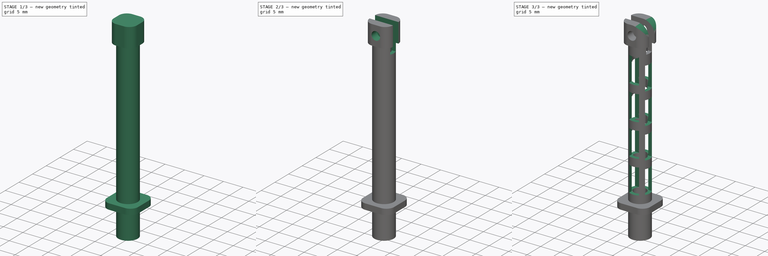
[diagram: build sequence overview — one tinted view per stage of 3, left to right]
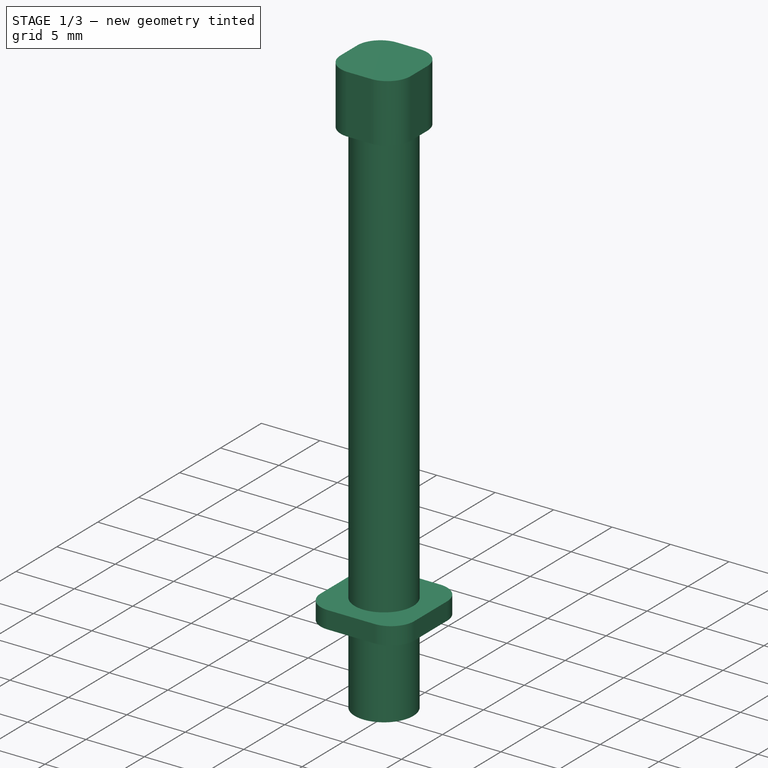
[diagram: stage 1 of 3 — iso view after this stage's code; geometry added in this stage tinted green]
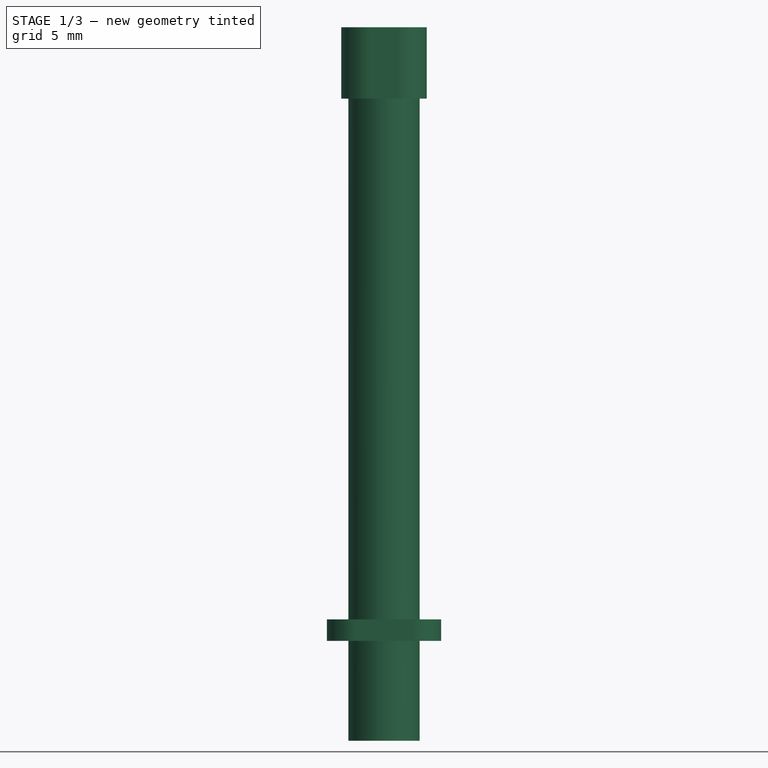
[diagram: stage 1 of 3 — front view after this stage's code; geometry added in this stage tinted green]
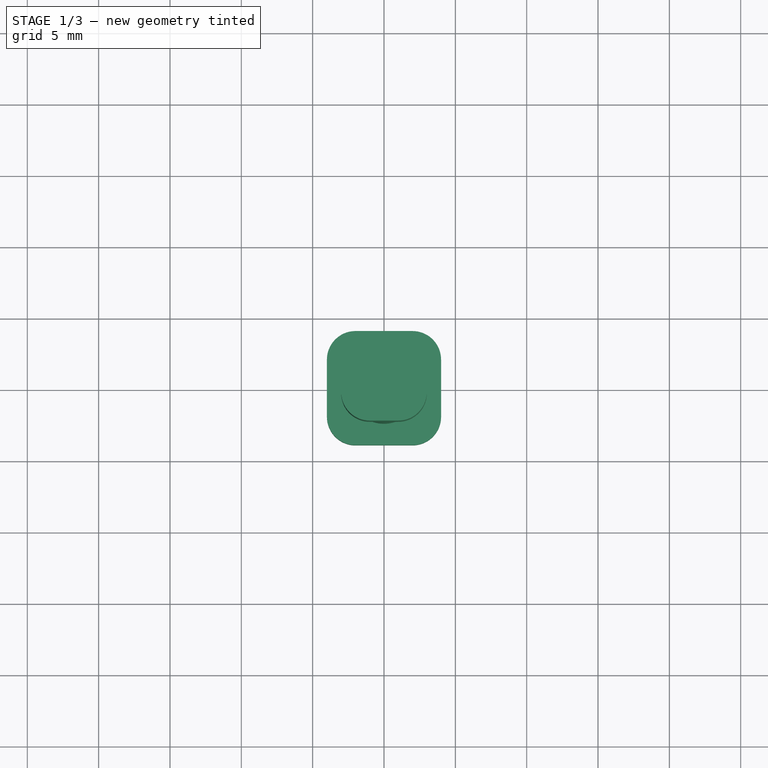
[diagram: stage 1 of 3 — top view after this stage's code; geometry added in this stage tinted green]
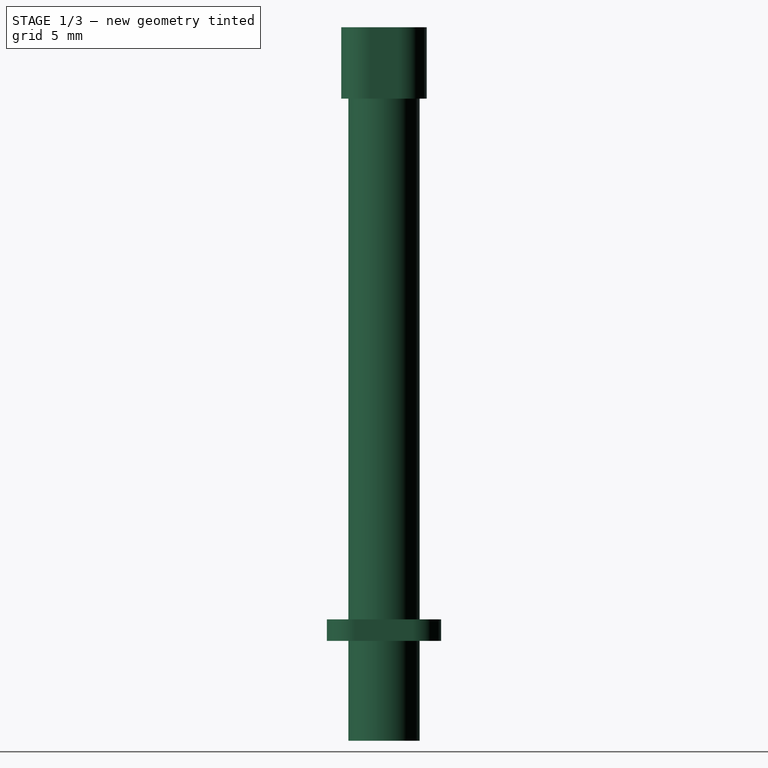
[diagram: stage 1 of 3 — right view after this stage's code; geometry added in this stage tinted green]
FCSTD DOCUMENT  (FreeCAD 0.21R29446 (Git))
Label: Lamp_post_40_v2
License: All rights reserved
LicenseURL: http://en.wikipedia.org/wiki/All_rights_reserved
objects: Sketcher::SketchObject×8, PartDesign::Pocket×5, PartDesign::Pad×3, PartDesign::Body×1
note: 25 computed .brp shape members not serialized (recipe doc carries the construction recipe); baked Part::Feature solids carry a one-line shape summary decoded from their .brp

FEATURE [Sketcher::SketchObject] Sketch
  FullyConstrained = true
  MapMode = 5
  Support = -> [XY_Plane]
  sketch-geometry (2):
    g0: Circle CenterX=0 CenterY=0 CenterZ=0 NormalX=0 NormalY=0 NormalZ=1 AngleXU=0 Radius=2.5
    g1: Circle CenterX=0 CenterY=0 CenterZ=0 NormalX=0 NormalY=0 NormalZ=1 AngleXU=0 Radius=1.6
  constraints (4):
    c: Coincident(g0,g-1)
    c: Diameter(g0) = 5
    c: Coincident(g1,g0)
    c: Diameter(g1) = 3.2
FEATURE [PartDesign::Pad] Pad
  Direction = (0,0,1)
  Length = 45
  Length2 = 10
  Profile = -> Sketch
  ReferenceAxis = -> Sketch [N_Axis]
  Type = 0
FEATURE [Sketcher::SketchObject] Sketch001
  AttachmentOffset = pos=(0,0,-7) rot=(0,0,1;0rad)
  FullyConstrained = true
  MapMode = 5
  Placement = pos=(0,0,7) rot=(1,0,0;3.14159rad)
  Support = -> [Pad]
  sketch-geometry (8):
    g0: LineSegment StartX=-2 StartY=4 StartZ=0 EndX=2 EndY=4 EndZ=0
    g1: LineSegment StartX=4 StartY=2 StartZ=0 EndX=4 EndY=-2 EndZ=0
    g2: LineSegment StartX=2 StartY=-4 StartZ=0 EndX=-2 EndY=-4 EndZ=0
    g3: LineSegment StartX=-4 StartY=-2 StartZ=0 EndX=-4 EndY=2 EndZ=0
    g4: ArcOfCircle CenterX=-2 CenterY=2 CenterZ=0 NormalX=0 NormalY=0 NormalZ=1 AngleXU=0 Radius=2 StartAngle=1.5708 EndAngle=3.14159
    g5: ArcOfCircle CenterX=2 CenterY=2 CenterZ=0 NormalX=0 NormalY=0 NormalZ=1 AngleXU=0 Radius=2 StartAngle=0 EndAngle=1.5708
    g6: ArcOfCircle CenterX=2 CenterY=-2 CenterZ=0 NormalX=0 NormalY=0 NormalZ=1 AngleXU=0 Radius=2 StartAngle=4.71239 EndAngle=6.28319
    g7: ArcOfCircle CenterX=-2 CenterY=-2 CenterZ=0 NormalX=0 NormalY=0 NormalZ=1 AngleXU=0 Radius=2 StartAngle=3.14159 EndAngle=4.71239
  constraints (18):
    c: Horizontal(g2)
    c: Vertical(g1)
    c: Tangent(g3,g4) = 1.5708
    c: Tangent(g0,g4) = 1.5708
    c: Tangent(g0,g5) = 1.5708
    c: Tangent(g1,g5) = 1.5708
    c: Tangent(g1,g6) = 1.5708
    c: Tangent(g2,g6) = 1.5708
    c: Tangent(g2,g7) = 1.5708
    c: Tangent(g3,g7) = 1.5708
    c: Equal(g4,g5)
    c: Equal(g5,g6)
    c: Equal(g6,g7)
    c: Symmetric(g0,g0,g-2)
    c: Symmetric(g3,g3,g-1)
    c: DistanceY(g2,g0) = 8
    c: DistanceX(g3,g1) = 8
    c: Diameter(g4) = 4
FEATURE [PartDesign::Pad] Pad001
  BaseFeature = -> Pad
  Direction = (0,0,-1)
  Length = 1.5
  Length2 = 10
  Profile = -> Sketch001
  ReferenceAxis = -> Sketch001 [N_Axis]
  Reversed = true
  Type = 0
FEATURE [Sketcher::SketchObject] Sketch002
  FullyConstrained = true
  MapMode = 5
  Placement = pos=(0,0,45) rot=(0,0,1;0rad)
  Support = -> [Pad001]
  sketch-geometry (8):
    g0: LineSegment StartX=-1 StartY=3 StartZ=0 EndX=1 EndY=3 EndZ=0
    g1: LineSegment StartX=3 StartY=1 StartZ=0 EndX=3 EndY=-1 EndZ=0
    g2: LineSegment StartX=1 StartY=-3 StartZ=0 EndX=-1 EndY=-3 EndZ=0
    g3: LineSegment StartX=-3 StartY=-1 StartZ=0 EndX=-3 EndY=1 EndZ=0
    g4: ArcOfCircle CenterX=-1 CenterY=1 CenterZ=0 NormalX=0 NormalY=0 NormalZ=1 AngleXU=0 Radius=2 StartAngle=1.5708 EndAngle=3.14159
    g5: ArcOfCircle CenterX=-1 CenterY=-1 CenterZ=0 NormalX=0 NormalY=0 NormalZ=1 AngleXU=0 Radius=2 StartAngle=3.14159 EndAngle=4.71239
    g6: ArcOfCircle CenterX=1 CenterY=-1 CenterZ=0 NormalX=0 NormalY=0 NormalZ=1 AngleXU=0 Radius=2 StartAngle=4.71239 EndAngle=6.28319
    g7: ArcOfCircle CenterX=1 CenterY=1 CenterZ=0 NormalX=0 NormalY=0 NormalZ=1 AngleXU=0 Radius=2 StartAngle=0 EndAngle=1.5708
  constraints (18):
    c: Horizontal(g0)
    c: Horizontal(g2)
    c: Vertical(g1)
    c: Vertical(g3)
    c: Tangent(g0,g4) = 1.5708
    c: Tangent(g3,g4) = 1.5708
    c: Tangent(g3,g5) = 1.5708
    c: Tangent(g2,g5) = 1.5708
    c: Tangent(g2,g6) = 1.5708
    c: Tangent(g1,g6) = 1.5708
    c: Tangent(g1,g7) = 1.5708
    c: Tangent(g0,g7) = 1.5708
    c: Equal(g7,g6)
    c: Diameter(g7) = 4
    c: Symmetric(g0,g2,g-1)
    c: Symmetric(g3,g1,g-2)
    c: DistanceY(g2,g0) = 6
    c: DistanceX(g3,g1) = 6
FEATURE [PartDesign::Pad] Pad002
  BaseFeature = -> Pad001
  Direction = (0,0,1)
  Length = 5
  Length2 = 10
  Profile = -> Sketch002
  ReferenceAxis = -> Sketch002 [N_Axis]
  Type = 0
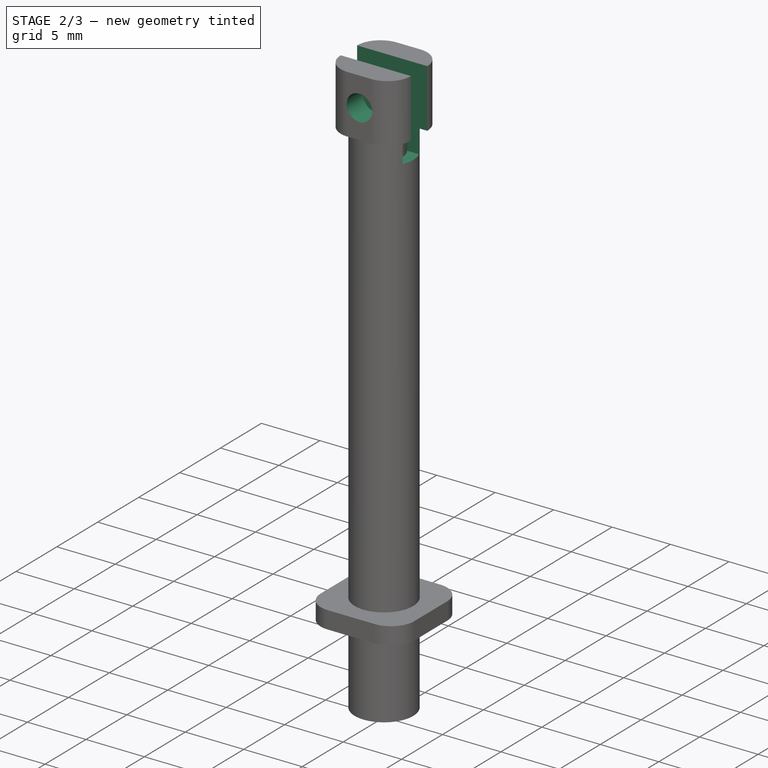
[diagram: stage 2 of 3 — iso view after this stage's code; geometry added in this stage tinted green]
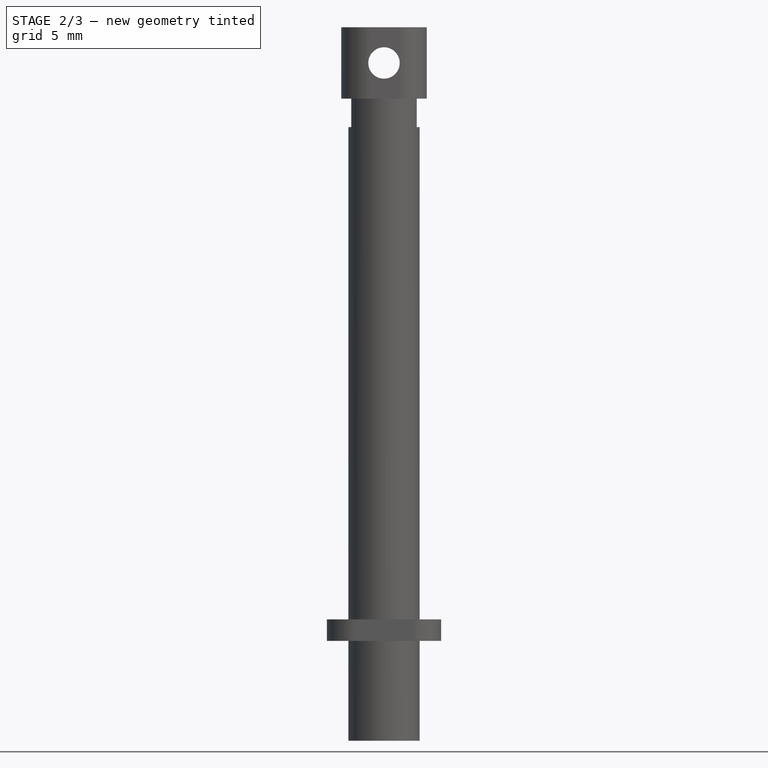
[diagram: stage 2 of 3 — front view after this stage's code; geometry added in this stage tinted green]
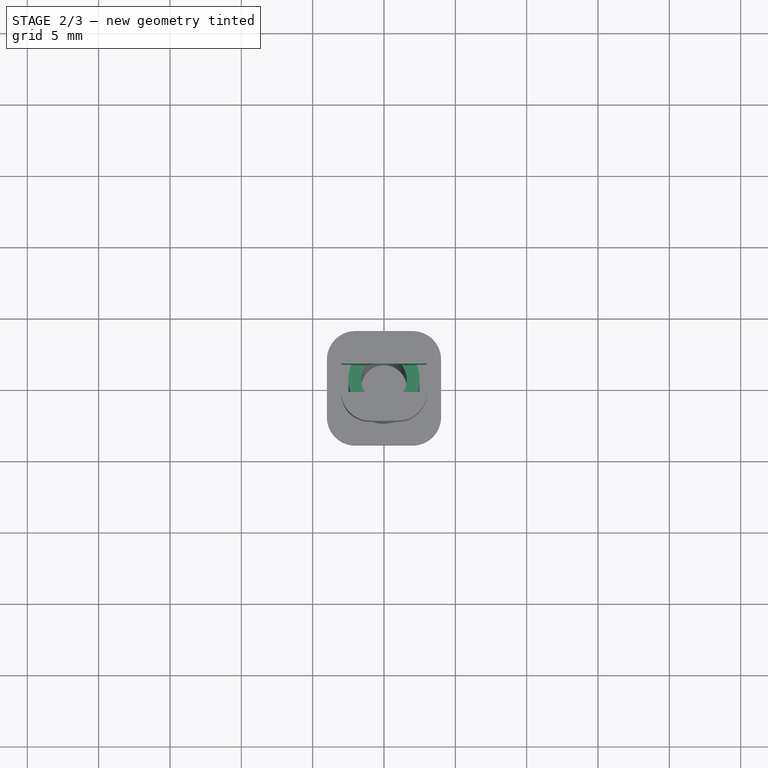
[diagram: stage 2 of 3 — top view after this stage's code; geometry added in this stage tinted green]
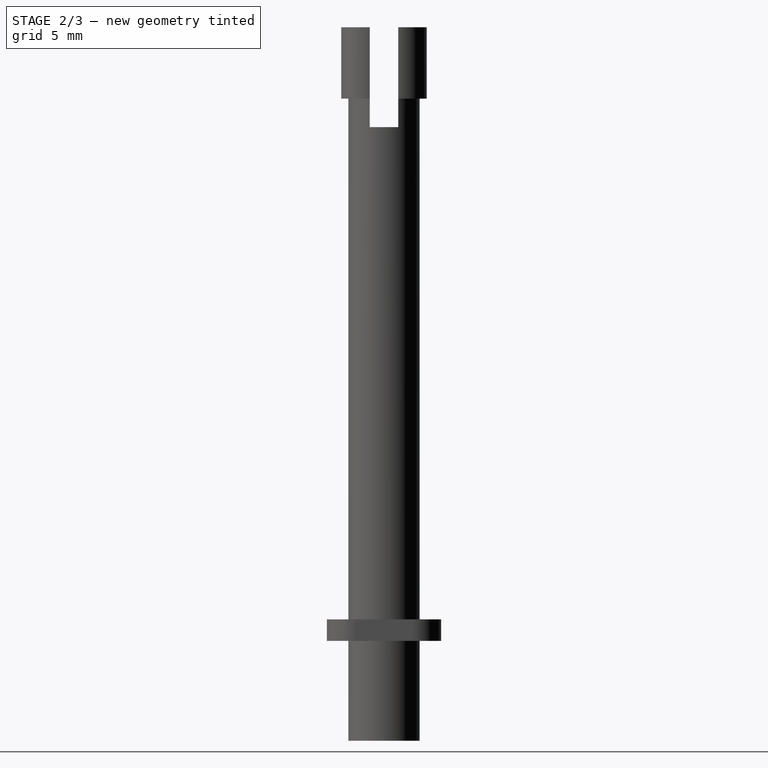
[diagram: stage 2 of 3 — right view after this stage's code; geometry added in this stage tinted green]
FEATURE [Sketcher::SketchObject] Sketch003
  ExternalGeometry = -> [Pad002]
  FullyConstrained = true
  MapMode = 5
  Placement = pos=(3,0,0) rot=(0.57735,0.57735,0.57735;2.0944rad)
  Support = -> [Pad002]
  sketch-geometry (4):
    g0: LineSegment StartX=-1 StartY=50 StartZ=0 EndX=1 EndY=50 EndZ=0
    g1: LineSegment StartX=1 StartY=50 StartZ=0 EndX=1 EndY=43 EndZ=0
    g2: LineSegment StartX=1 StartY=43 StartZ=0 EndX=-1 EndY=43 EndZ=0
    g3: LineSegment StartX=-1 StartY=43 StartZ=0 EndX=-1 EndY=50 EndZ=0
  constraints (10):
    c: Coincident(g0,g1)
    c: Coincident(g1,g2)
    c: Coincident(g2,g3)
    c: Coincident(g3,g0)
    c: Horizontal(g2)
    c: Vertical(g3)
    c: Coincident(g-3,g0)
    c: Coincident(g0,g-3)
    c: DistanceY(g1,g-4) = 2
    c: Vertical(g1)
FEATURE [PartDesign::Pocket] Pocket
  BaseFeature = -> Pad002
  Direction = (-1,0,0)
  Length = 5
  Length2 = 5
  Profile = -> Sketch003
  ReferenceAxis = -> Sketch003 [N_Axis]
  Type = 1
FEATURE [Sketcher::SketchObject] Sketch004
  ExternalGeometry = -> [Pocket]
  FullyConstrained = true
  MapMode = 5
  Placement = pos=(0,-3,0) rot=(1,0,0;1.5708rad)
  Support = -> [Pocket]
  sketch-geometry (4):
    g0: Circle CenterX=0 CenterY=47.5 CenterZ=0 NormalX=0 NormalY=0 NormalZ=1 AngleXU=0 Radius=1.1
    g1: GeomPoint X=0 Y=47.5 Z=0
    g2: LineSegment StartX=-1 StartY=50 StartZ=0 EndX=1 EndY=45 EndZ=0
    g3: GeomPoint X=0 Y=47.5 Z=0
  constraints (7):
    c: Diameter(g0) = 2.2
    c: Coincident(g1,g0)
    c: PointOnObject(g0,g-2)
    c: Coincident(g2,g-4)
    c: Coincident(g2,g-3)
    c: PointOnObject(g3,g2)
    c: Coincident(g3,g0)
FEATURE [PartDesign::Pocket] Pocket001
  BaseFeature = -> Pocket
  Direction = (0,1,-2e-16)
  Length = 5
  Length2 = 5
  Profile = -> Sketch004
  ReferenceAxis = -> Sketch004 [N_Axis]
  Type = 1
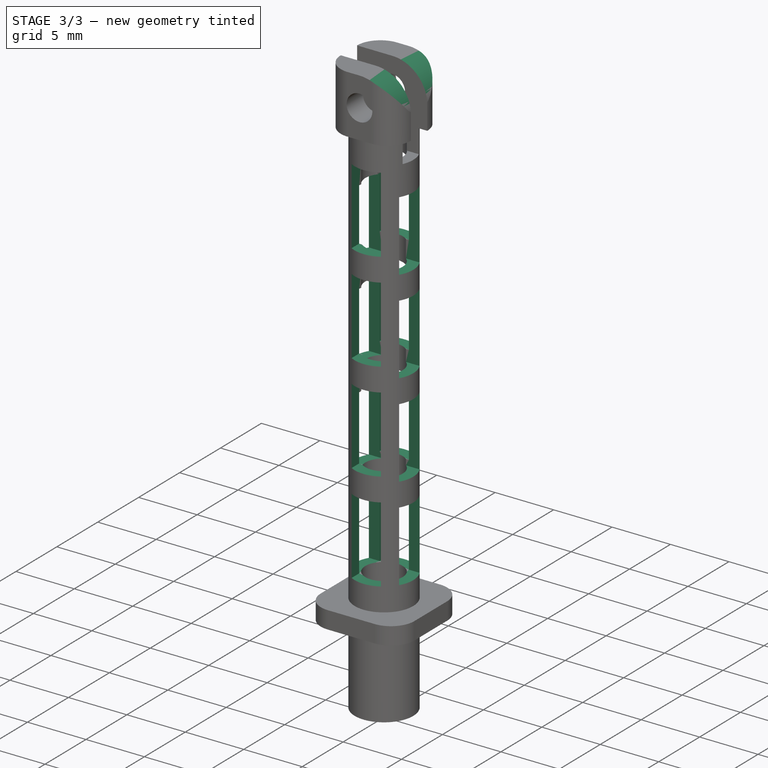
[diagram: stage 3 of 3 — iso view after this stage's code; geometry added in this stage tinted green]
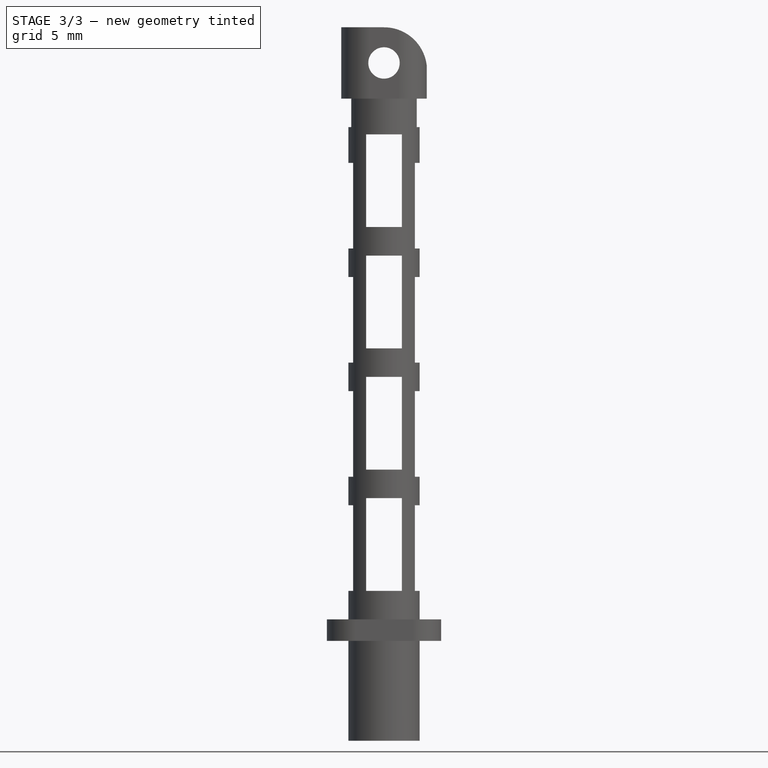
[diagram: stage 3 of 3 — front view after this stage's code; geometry added in this stage tinted green]
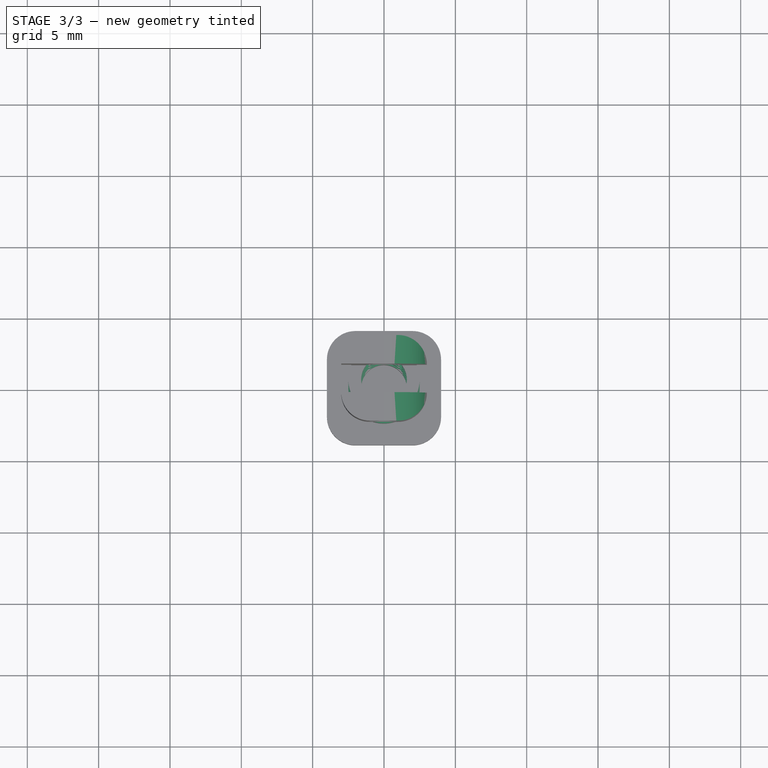
[diagram: stage 3 of 3 — top view after this stage's code; geometry added in this stage tinted green]
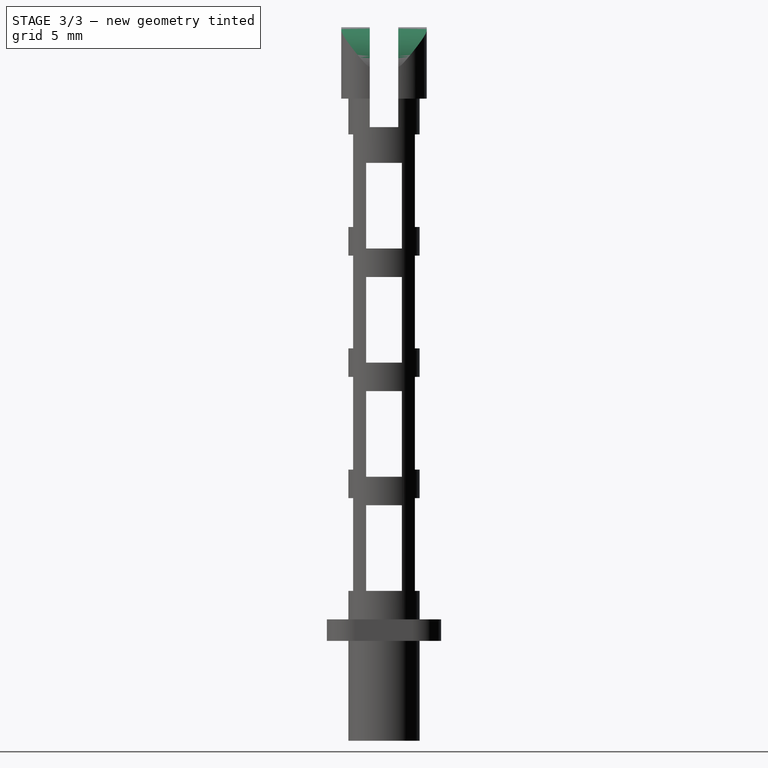
[diagram: stage 3 of 3 — right view after this stage's code; geometry added in this stage tinted green]
FEATURE [Sketcher::SketchObject] Sketch005
  ExternalGeometry = -> [Pocket001]
  FullyConstrained = true
  MapMode = 5
  Placement = pos=(4,0,0) rot=(0.57735,0.57735,0.57735;2.0944rad)
  Support = -> [Pocket001]
  sketch-geometry (16):
    g0: LineSegment StartX=-1.25 StartY=10.5 StartZ=0 EndX=1.25 EndY=10.5 EndZ=0
    g1: LineSegment StartX=1.25 StartY=10.5 StartZ=0 EndX=1.25 EndY=16.5 EndZ=0
    g2: LineSegment StartX=1.25 StartY=16.5 StartZ=0 EndX=-1.25 EndY=16.5 EndZ=0
    g3: LineSegment StartX=-1.25 StartY=16.5 StartZ=0 EndX=-1.25 EndY=10.5 EndZ=0
    g4: LineSegment StartX=-1.25 StartY=18.5 StartZ=0 EndX=1.25 EndY=18.5 EndZ=0
    g5: LineSegment StartX=1.25 StartY=18.5 StartZ=0 EndX=1.25 EndY=24.5 EndZ=0
    g6: LineSegment StartX=1.25 StartY=24.5 StartZ=0 EndX=-1.25 EndY=24.5 EndZ=0
    g7: LineSegment StartX=-1.25 StartY=24.5 StartZ=0 EndX=-1.25 EndY=18.5 EndZ=0
    g8: LineSegment StartX=-1.25 StartY=26.5 StartZ=0 EndX=1.25 EndY=26.5 EndZ=0
    g9: LineSegment StartX=1.25 StartY=26.5 StartZ=0 EndX=1.25 EndY=32.5 EndZ=0
    g10: LineSegment StartX=1.25 StartY=32.5 StartZ=0 EndX=-1.25 EndY=32.5 EndZ=0
    g11: LineSegment StartX=-1.25 StartY=32.5 StartZ=0 EndX=-1.25 EndY=26.5 EndZ=0
    g12: LineSegment StartX=-1.25 StartY=40.5 StartZ=0 EndX=1.25 EndY=40.5 EndZ=0
    g13: LineSegment StartX=1.25 StartY=40.5 StartZ=0 EndX=1.25 EndY=34.5 EndZ=0
    g14: LineSegment StartX=1.25 StartY=34.5 StartZ=0 EndX=-1.25 EndY=34.5 EndZ=0
    g15: LineSegment StartX=-1.25 StartY=34.5 StartZ=0 EndX=-1.25 EndY=40.5 EndZ=0
  constraints (44):
    c: Coincident(g0,g1)
    c: Coincident(g1,g2)
    c: Coincident(g2,g3)
    c: Coincident(g3,g0)
    c: Horizontal(g0)
    c: Vertical(g1)
    c: Vertical(g3)
    c: Distance(g3) = 6
    c: Symmetric(g2,g1,g-2)
    c: DistanceY(g-3,g0) = 2
    c: Coincident(g4,g5)
    c: Coincident(g5,g6)
    c: Coincident(g6,g7)
    c: Coincident(g7,g4)
    c: Horizontal(g6)
    c: Vertical(g5)
    c: Vertical(g7)
    c: DistanceY(g2,g4) = 2
    c: Coincident(g8,g9)
    c: Coincident(g9,g10)
    c: Coincident(g10,g11)
    c: Coincident(g11,g8)
    c: Horizontal(g10)
    c: Vertical(g9)
    c: Vertical(g11)
    c: DistanceY(g5,g8) = 2
    c: Coincident(g12,g13)
    c: Coincident(g13,g14)
    c: Coincident(g14,g15)
    c: Coincident(g15,g12)
    c: Horizontal(g12)
    c: Vertical(g13)
    c: Vertical(g15)
    c: Equal(g13,g9)
    c: Equal(g9,g5)
    c: Equal(g5,g1)
    c: DistanceY(g9,g13) = 2
    c: DistanceX(g2,g1) = 2.5
    c: DistanceX(g4,g4) = 2.5
    c: Symmetric(g4,g4,g-2)
    c: Symmetric(g8,g8,g-2)
    c: DistanceX(g8,g8) = 2.5
    c: Symmetric(g13,g14,g-2)
    c: DistanceX(g14,g13) = 2.5
FEATURE [Sketcher::SketchObject] Sketch006
  ExternalGeometry = -> [Pocket001]
  FullyConstrained = true
  MapMode = 5
  Placement = pos=(0,-4,0) rot=(1,0,0;1.5708rad)
  Support = -> [Pocket001]
  sketch-geometry (16):
    g0: LineSegment StartX=-1.25 StartY=10.5 StartZ=0 EndX=1.25 EndY=10.5 EndZ=0
    g1: LineSegment StartX=1.25 StartY=10.5 StartZ=0 EndX=1.25 EndY=17 EndZ=0
    g2: LineSegment StartX=1.25 StartY=17 StartZ=0 EndX=-1.25 EndY=17 EndZ=0
    g3: LineSegment StartX=-1.25 StartY=17 StartZ=0 EndX=-1.25 EndY=10.5 EndZ=0
    g4: LineSegment StartX=-1.25 StartY=19 StartZ=0 EndX=1.25 EndY=19 EndZ=0
    g5: LineSegment StartX=1.25 StartY=19 StartZ=0 EndX=1.25 EndY=25.5 EndZ=0
    g6: LineSegment StartX=1.25 StartY=25.5 StartZ=0 EndX=-1.25 EndY=25.5 EndZ=0
    g7: LineSegment StartX=-1.25 StartY=25.5 StartZ=0 EndX=-1.25 EndY=19 EndZ=0
    g8: LineSegment StartX=-1.25 StartY=27.5 StartZ=0 EndX=1.25 EndY=27.5 EndZ=0
    g9: LineSegment StartX=1.25 StartY=27.5 StartZ=0 EndX=1.25 EndY=34 EndZ=0
    g10: LineSegment StartX=1.25 StartY=34 StartZ=0 EndX=-1.25 EndY=34 EndZ=0
    g11: LineSegment StartX=-1.25 StartY=34 StartZ=0 EndX=-1.25 EndY=27.5 EndZ=0
    g12: LineSegment StartX=-1.25 StartY=36 StartZ=0 EndX=1.25 EndY=36 EndZ=0
    g13: LineSegment StartX=1.25 StartY=36 StartZ=0 EndX=1.25 EndY=42.5 EndZ=0
    g14: LineSegment StartX=1.25 StartY=42.5 StartZ=0 EndX=-1.25 EndY=42.5 EndZ=0
    g15: LineSegment StartX=-1.25 StartY=42.5 StartZ=0 EndX=-1.25 EndY=36 EndZ=0
  constraints (44):
    c: Coincident(g0,g1)
    c: Coincident(g1,g2)
    c: Coincident(g2,g3)
    c: Coincident(g3,g0)
    c: Horizontal(g0)
    c: Vertical(g1)
    c: Vertical(g3)
    c: Coincident(g4,g5)
    c: Coincident(g5,g6)
    c: Coincident(g6,g7)
    c: Coincident(g7,g4)
    c: Horizontal(g4)
    c: Vertical(g5)
    c: Vertical(g7)
    c: Coincident(g8,g9)
    c: Coincident(g9,g10)
    c: Coincident(g10,g11)
    c: Coincident(g11,g8)
    c: Horizontal(g8)
    c: Vertical(g9)
    c: Vertical(g11)
    c: Coincident(g12,g13)
    c: Coincident(g13,g14)
    c: Coincident(g14,g15)
    c: Coincident(g15,g12)
    c: Horizontal(g12)
    c: Vertical(g13)
    c: Vertical(g15)
    c: Symmetric(g14,g13,g-2)
    c: Symmetric(g10,g9,g-2)
    c: Symmetric(g6,g5,g-2)
    c: Symmetric(g2,g1,g-2)
    c: DistanceX(g2,g1) = 2.5
    c: DistanceX(g6,g5) = 2.5
    c: DistanceX(g10,g9) = 2.5
    c: DistanceX(g14,g13) = 2.5
    c: DistanceY(g9,g12) = 2
    c: DistanceY(g5,g8) = 2
    c: DistanceY(g1,g4) = 2
    c: DistanceY(g-3,g0) = 2
    c: Equal(g9,g13)
    c: Distance(g1) = 6.5
    c: Equal(g13,g5)
    c: Equal(g5,g1)
FEATURE [PartDesign::Pocket] Pocket002
  BaseFeature = -> Pocket001
  Direction = (0,1,-2e-16)
  Length = 5
  Length2 = 5
  Profile = -> Sketch006
  ReferenceAxis = -> Sketch006 [N_Axis]
  Type = 1
FEATURE [PartDesign::Pocket] Pocket003
  BaseFeature = -> Pocket002
  Direction = (-1,0,0)
  Length = 5
  Length2 = 5
  Profile = -> Sketch005
  ReferenceAxis = -> Sketch005 [N_Axis]
  Type = 1
FEATURE [Sketcher::SketchObject] Sketch007
  ExternalGeometry = -> [Pocket003]
  FullyConstrained = true
  MapMode = 5
  Placement = pos=(0,-3,0) rot=(1,0,0;1.5708rad)
  Support = -> [Pocket003]
  sketch-geometry (3):
    g0: ArcOfCircle CenterX=0 CenterY=46.9885 CenterZ=0 NormalX=0 NormalY=0 NormalZ=1 AngleXU=0 Radius=3.01146 StartAngle=0.0872665 EndAngle=1.5708
    g1: LineSegment StartX=2e-16 StartY=50 StartZ=0 EndX=3 EndY=50 EndZ=0
    g2: LineSegment StartX=3 StartY=47.251 StartZ=0 EndX=3 EndY=50 EndZ=0
  constraints (9):
    c: PointOnObject(g0,g-2)
    c: PointOnObject(g0,g-3)
    c: PointOnObject(g0,g-4)
    c: PointOnObject(g0,g-2)
    c: Angle(g0) = 1.48353
    c: Coincident(g1,g0)
    c: Coincident(g1,g-4)
    c: Coincident(g2,g0)
    c: Coincident(g2,g1)
FEATURE [PartDesign::Pocket] Pocket004
  BaseFeature = -> Pocket003
  Direction = (0,1,-2e-16)
  Length = 5
  Length2 = 5
  Profile = -> Sketch007
  ReferenceAxis = -> Sketch007 [N_Axis]
  Type = 1
FEATURE [PartDesign::Body] Body
  Group = -> [Sketch,Pad,Sketch001,Pad001,Sketch002,Pad002,Sketch003,Pocket,Sketch004,Pocket001,Sketch005,Sketch006,Pocket002,Pocket003,Sketch007,Pocket004]
  Origin = -> Origin
  Tip = -> Pocket004
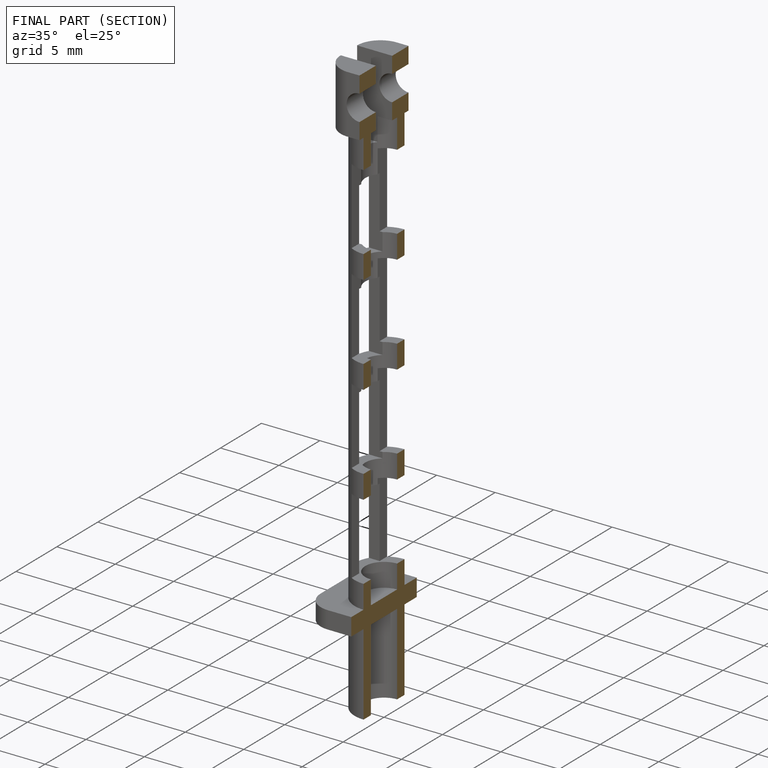
[diagram: finished part — half-section view (interior)]
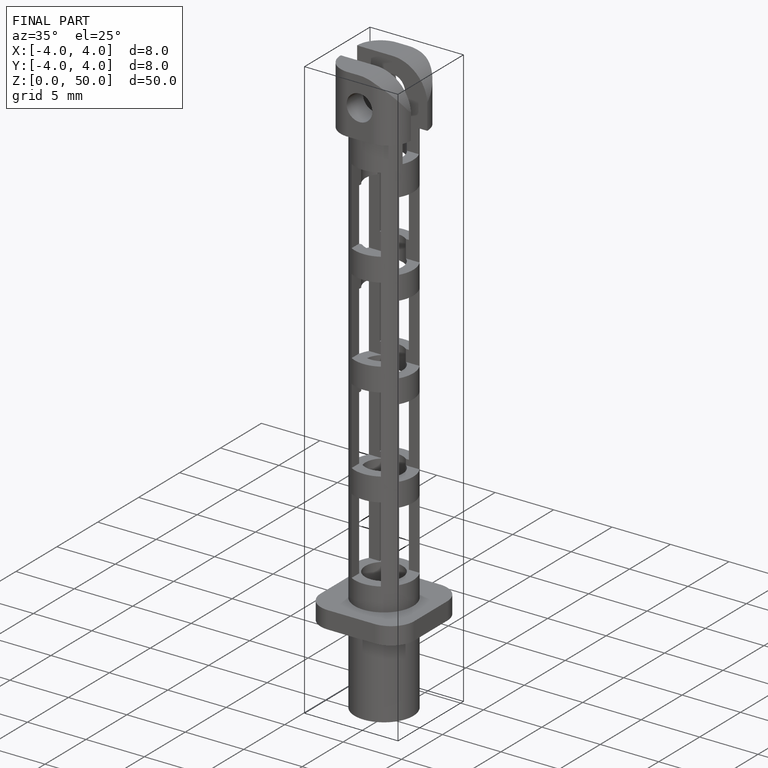
[diagram: finished part — iso view with bounding-box wireframe]
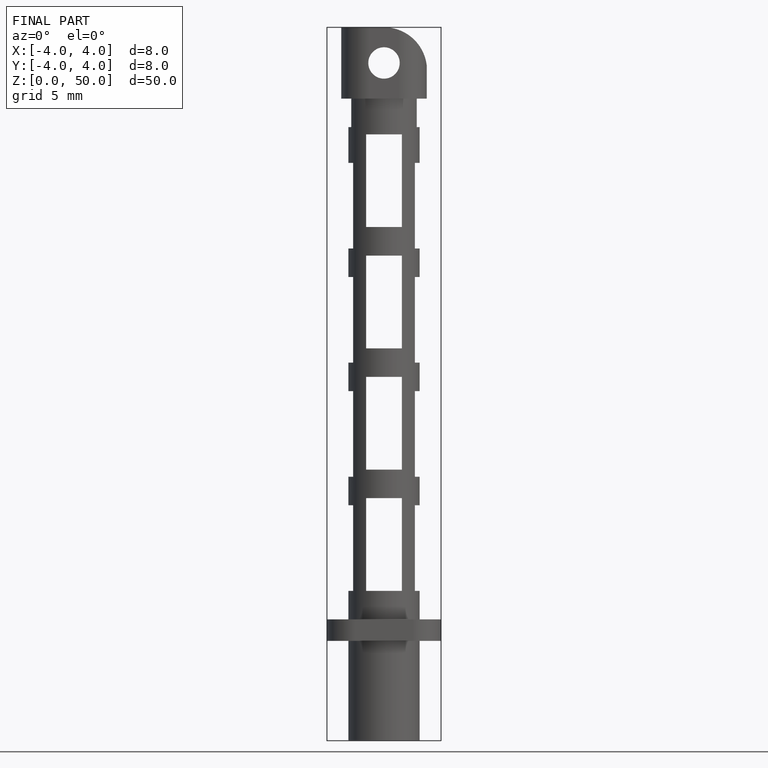
[diagram: finished part — front view with bounding-box wireframe]
